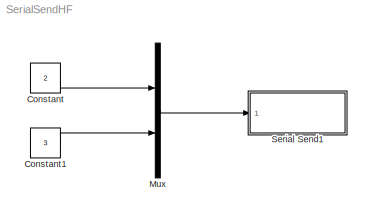
MODEL SerialSendHF
KIND model
BLOCK [Constant] Constant
  OutDataTypeStr = uint16
  SID = 35
  Value = 2
BLOCK [Constant] Constant1
  OutDataTypeStr = uint16
  SID = 36
  Value = 3
BLOCK [Mux] Mux
  DisplayOption = bar
  Inputs = 2
  Ports = [2, 1]
  SID = 1
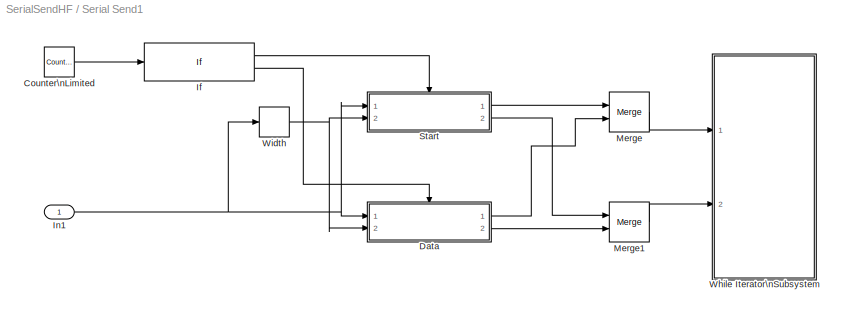
BLOCK [SubSystem] Serial Send1
  Ports = [1]
  RequestExecContextInheritance = off
  SID = 2
BLOCK [Reference] Serial Send1/Counter\nLimited  REF=simulink/Sources/Counter\nLimited
  Ports = [0, 1]
  SID = 4
  SourceBlock = simulink/Sources/Counter\nLimited
  SourceProductBaseCode = SL
  SourceType = Counter Limited
  tsamp = -1
  uplimit = 11999
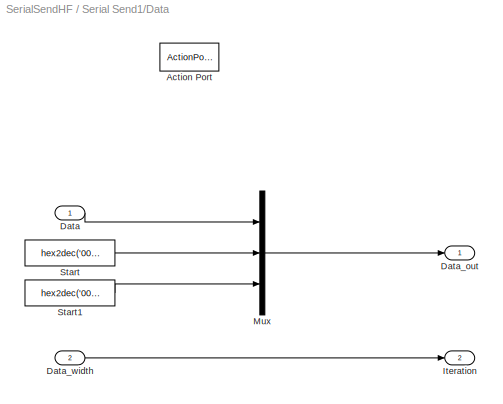
BLOCK [SubSystem] Serial Send1/Data
  Ports = [2, 2, 0, 0, 0, 0, 0, 1]
  RequestExecContextInheritance = off
  SID = 5
  TreatAsAtomicUnit = on
BLOCK [ActionPort] Serial Send1/Data/Action Port
  ActionType = else
  SID = 8
BLOCK [Inport] Serial Send1/Data/Data
  IconDisplay = Port number
  SID = 6
BLOCK [Outport] Serial Send1/Data/Data_out
  IconDisplay = Port number
  SID = 12
BLOCK [Inport] Serial Send1/Data/Data_width
  IconDisplay = Port number
  Port = 2
  SID = 7
BLOCK [Outport] Serial Send1/Data/Iteration
  IconDisplay = Port number
  Port = 2
  SID = 13
BLOCK [Mux] Serial Send1/Data/Mux
  DisplayOption = bar
  Inputs = 3
  Ports = [3, 1]
  SID = 9
BLOCK [Constant] Serial Send1/Data/Start
  OutDataTypeStr = uint16
  SID = 10
  Value = hex2dec('0000')
BLOCK [Constant] Serial Send1/Data/Start1
  OutDataTypeStr = uint16
  SID = 11
  Value = hex2dec('0000')
BLOCK [If] Serial Send1/If
  IfExpression = u1 == 0
  Ports = [1, 2]
  SID = 14
BLOCK [Inport] Serial Send1/In1
  IconDisplay = Port number
  SID = 3
BLOCK [Merge] Serial Send1/Merge
  Ports = [2, 1]
  SID = 15
BLOCK [Merge] Serial Send1/Merge1
  Ports = [2, 1]
  SID = 16
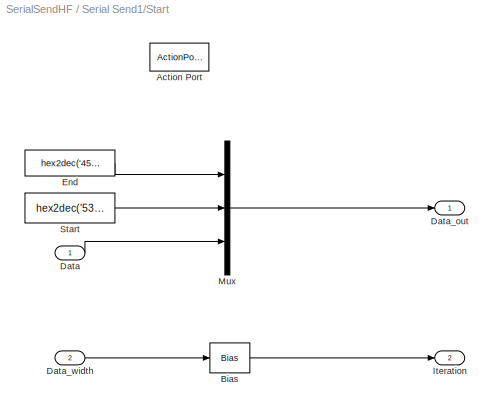
BLOCK [SubSystem] Serial Send1/Start
  Ports = [2, 2, 0, 0, 0, 0, 0, 1]
  RequestExecContextInheritance = off
  SID = 17
  TreatAsAtomicUnit = on
BLOCK [ActionPort] Serial Send1/Start/Action Port
  ActionType = then
  SID = 20
BLOCK [Bias] Serial Send1/Start/Bias
  Bias = 2
  SID = 21
  SaturateOnIntegerOverflow = off
BLOCK [Inport] Serial Send1/Start/Data
  IconDisplay = Port number
  SID = 18
BLOCK [Outport] Serial Send1/Start/Data_out
  IconDisplay = Port number
  SID = 25
BLOCK [Inport] Serial Send1/Start/Data_width
  IconDisplay = Port number
  Port = 2
  SID = 19
BLOCK [Constant] Serial Send1/Start/End
  OutDataTypeStr = uint16
  SID = 24
  Value = hex2dec('4545')
BLOCK [Outport] Serial Send1/Start/Iteration
  IconDisplay = Port number
  Port = 2
  SID = 26
BLOCK [Mux] Serial Send1/Start/Mux
  DisplayOption = bar
  Inputs = 3
  Ports = [3, 1]
  SID = 23
BLOCK [Constant] Serial Send1/Start/Start
  OutDataTypeStr = uint16
  SID = 22
  Value = hex2dec('5353')
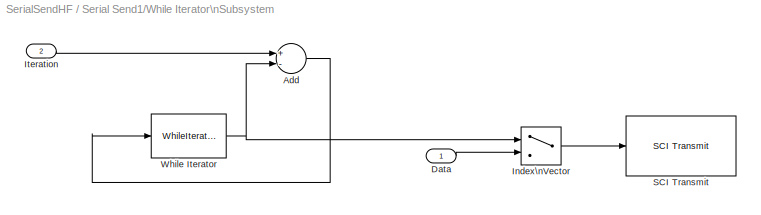
BLOCK [SubSystem] Serial Send1/While Iterator\nSubsystem
  Ports = [2]
  RequestExecContextInheritance = off
  SID = 27
  TreatAsAtomicUnit = on
BLOCK [Sum] Serial Send1/While Iterator\nSubsystem/Add
  InputSameDT = off
  Inputs = +-
  Ports = [2, 1]
  SID = 30
  SaturateOnIntegerOverflow = off
BLOCK [Inport] Serial Send1/While Iterator\nSubsystem/Data
  IconDisplay = Port number
  SID = 28
BLOCK [MultiPortSwitch] Serial Send1/While Iterator\nSubsystem/Index\nVector
  InputSameDT = off
  Inputs = 1
  Ports = [2, 1]
  SID = 31
  SaturateOnIntegerOverflow = off
BLOCK [Inport] Serial Send1/While Iterator\nSubsystem/Iteration
  IconDisplay = Port number
  Port = 2
  SID = 29
BLOCK [Reference] Serial Send1/While Iterator\nSubsystem/SCI Transmit  REF=c280xlib/SCI Transmit
  MultiThreadCoSim = auto
  Ports = [1]
  SID = 32
  SourceBlock = c280xlib/SCI Transmit
  SourceProductBaseCode = TIC2000
  SourceType = C28x SCI Transmit
  dataHead = ''
  dataTail = ''
  numFifo = 1
  postInterrupt = off
  sciModule = A
BLOCK [WhileIterator] Serial Send1/While Iterator\nSubsystem/While Iterator
  MaxIters = -1
  OutputDataType = int16
  Ports = [1, 1]
  SID = 33
  ShowIterationPort = on
  WhileBlockType = do-while
BLOCK [Width] Serial Send1/Width
  DataType = uint16
  OutDataTypeMode = All ports same datatype
  SID = 34
LINE Constant1:1 -> Mux:2
LINE Constant:1 -> Mux:1
LINE Mux:1 -> Serial Send1:1
LINE Serial Send1/Counter\nLimited:1 -> Serial Send1/If:1
LINE Serial Send1/Data/Data:1 -> Serial Send1/Data/Mux:1
LINE Serial Send1/Data/Data_width:1 -> Serial Send1/Data/Iteration:1
LINE Serial Send1/Data/Mux:1 -> Serial Send1/Data/Data_out:1
LINE Serial Send1/Data/Start1:1 -> Serial Send1/Data/Mux:3
LINE Serial Send1/Data/Start:1 -> Serial Send1/Data/Mux:2
LINE Serial Send1/Data:1 -> Serial Send1/Merge:2
LINE Serial Send1/Data:2 -> Serial Send1/Merge1:2
LINE Serial Send1/If:1 -> Serial Send1/Start:ifaction
LINE Serial Send1/If:2 -> Serial Send1/Data:ifaction
NET Serial Send1/In1:1 -> Serial Send1/Data:1, Serial Send1/Start:1, Serial Send1/Width:1
LINE Serial Send1/Merge1:1 -> Serial Send1/While Iterator\nSubsystem:2
LINE Serial Send1/Merge:1 -> Serial Send1/While Iterator\nSubsystem:1
LINE Serial Send1/Start/Bias:1 -> Serial Send1/Start/Iteration:1
LINE Serial Send1/Start/Data:1 -> Serial Send1/Start/Mux:3
LINE Serial Send1/Start/Data_width:1 -> Serial Send1/Start/Bias:1
LINE Serial Send1/Start/End:1 -> Serial Send1/Start/Mux:1
LINE Serial Send1/Start/Mux:1 -> Serial Send1/Start/Data_out:1
LINE Serial Send1/Start/Start:1 -> Serial Send1/Start/Mux:2
LINE Serial Send1/Start:1 -> Serial Send1/Merge:1
LINE Serial Send1/Start:2 -> Serial Send1/Merge1:1
LINE Serial Send1/While Iterator\nSubsystem/Add:1 -> Serial Send1/While Iterator\nSubsystem/While Iterator:1
LINE Serial Send1/While Iterator\nSubsystem/Data:1 -> Serial Send1/While Iterator\nSubsystem/Index\nVector:2
LINE Serial Send1/While Iterator\nSubsystem/Index\nVector:1 -> Serial Send1/While Iterator\nSubsystem/SCI Transmit:1
LINE Serial Send1/While Iterator\nSubsystem/Iteration:1 -> Serial Send1/While Iterator\nSubsystem/Add:1
NET Serial Send1/While Iterator\nSubsystem/While Iterator:1 -> Serial Send1/While Iterator\nSubsystem/Add:2, Serial Send1/While Iterator\nSubsystem/Index\nVector:1
NET Serial Send1/Width:1 -> Serial Send1/Data:2, Serial Send1/Start:2
note: NET lines group one-source signal fan-out (src -> all destinations, sorted); 1:1 wires keep LINE
